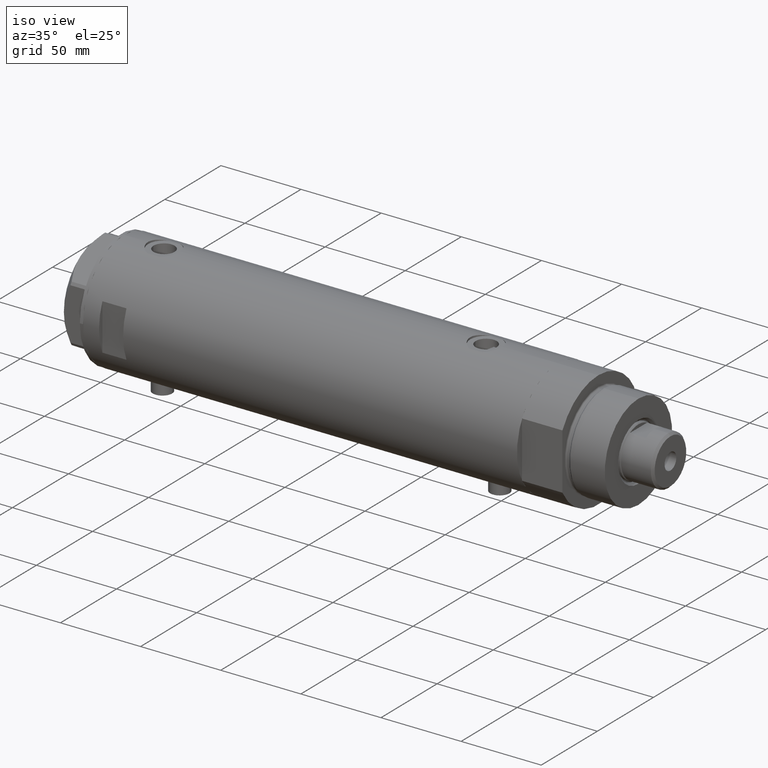
[diagram: clean part render]
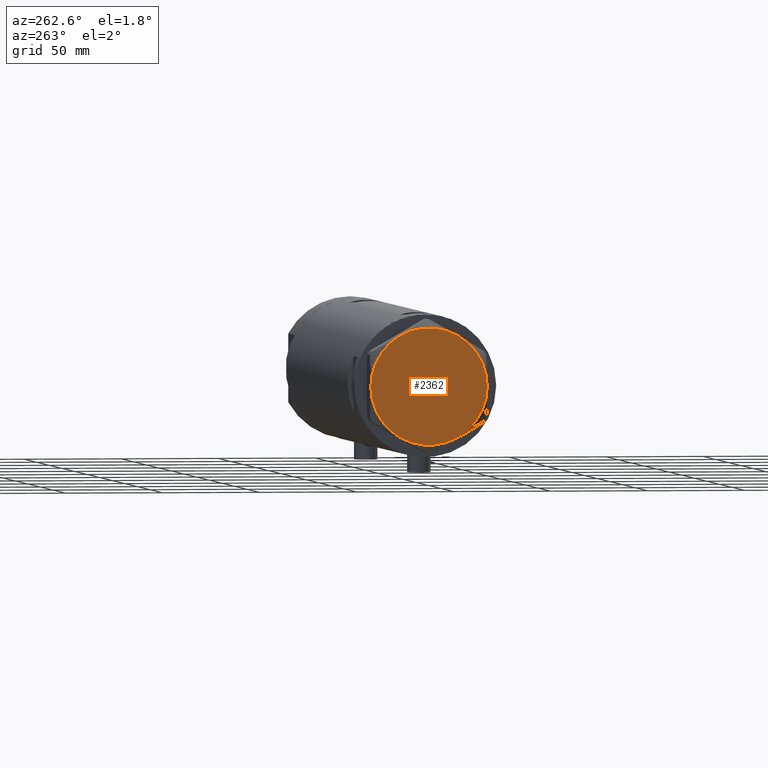
[diagram: tour spotlight — one face highlighted and labeled with its STEP entity id]
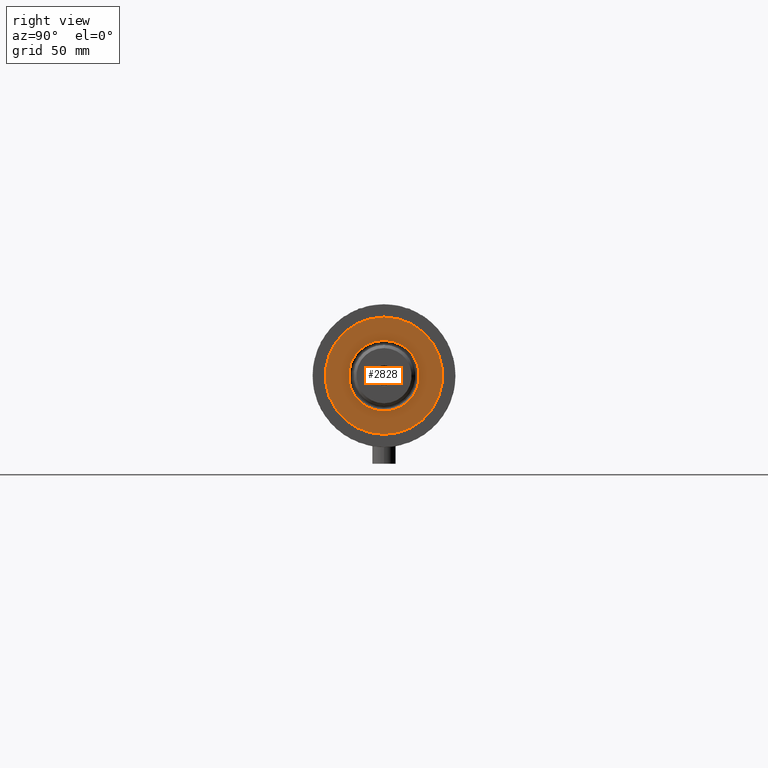
[diagram: tour spotlight — one face highlighted and labeled with its STEP entity id]
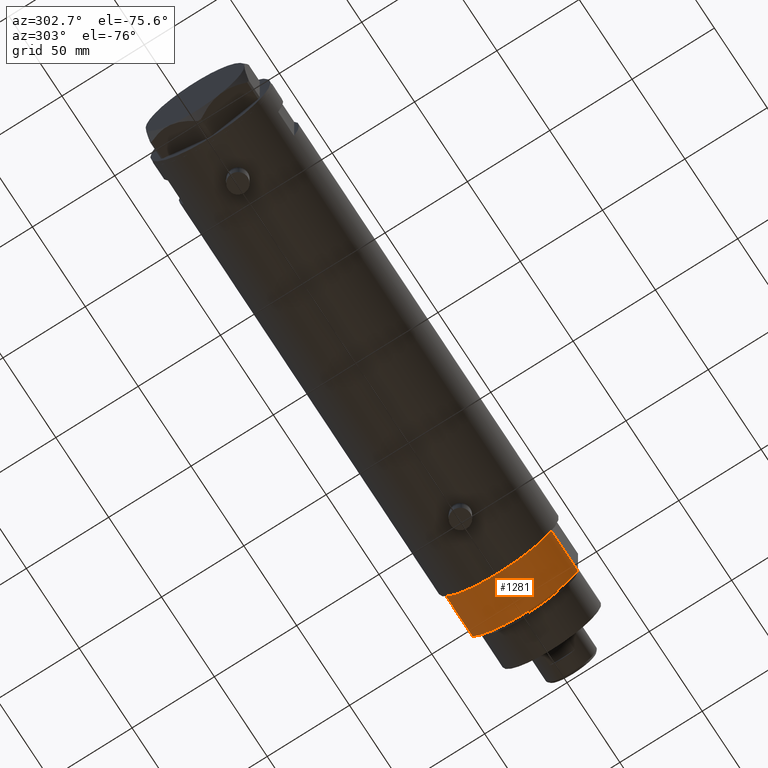
[diagram: tour spotlight — one face highlighted and labeled with its STEP entity id]
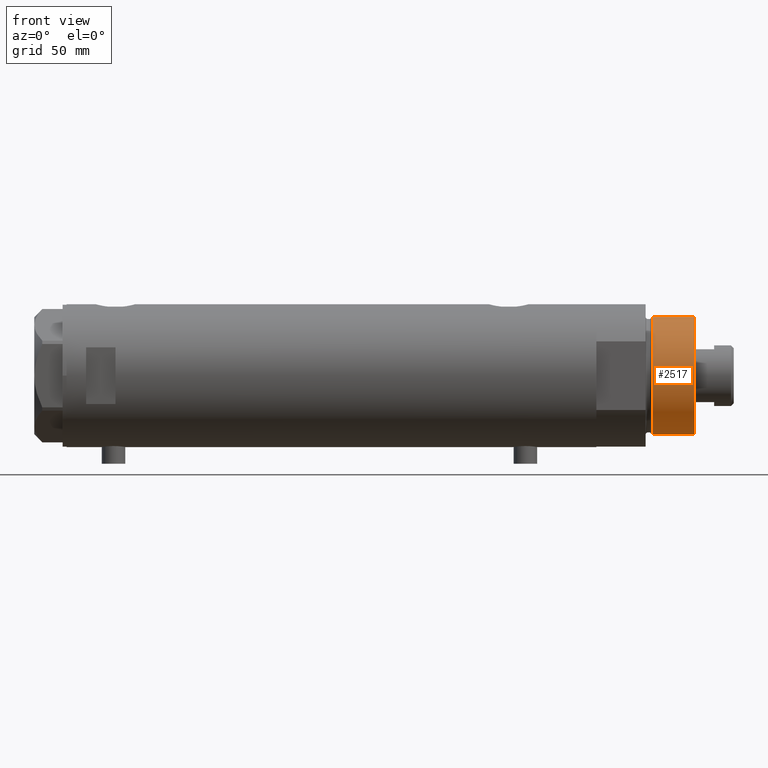
[diagram: tour spotlight — one face highlighted and labeled with its STEP entity id]
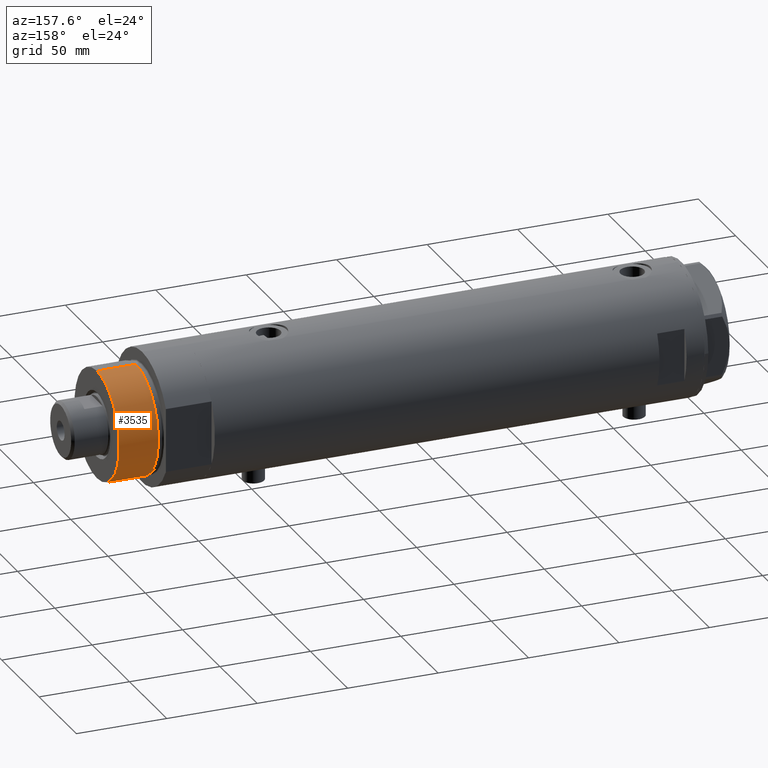
[diagram: tour spotlight — one face highlighted and labeled with its STEP entity id]
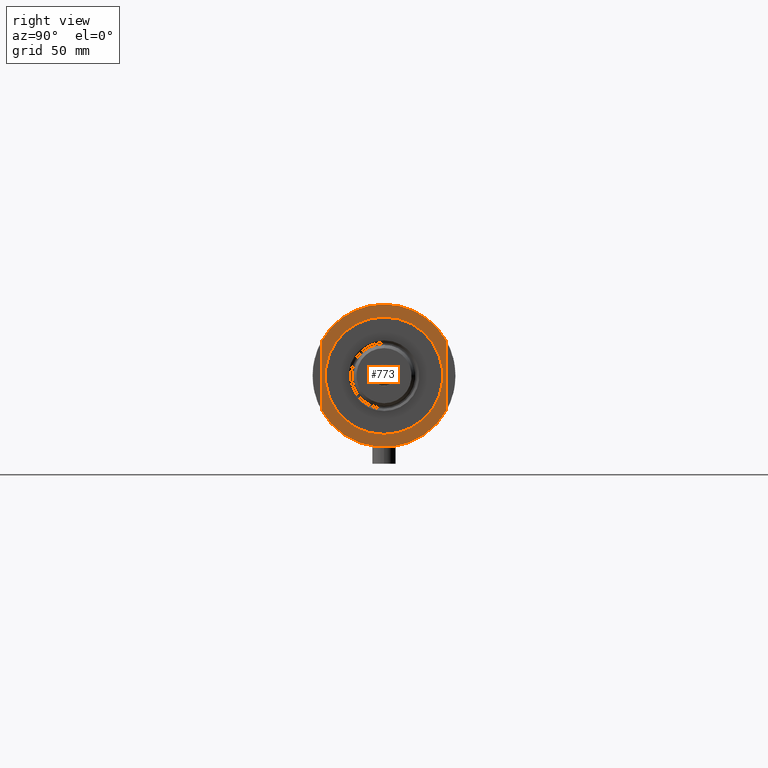
[diagram: tour spotlight — one face highlighted and labeled with its STEP entity id]
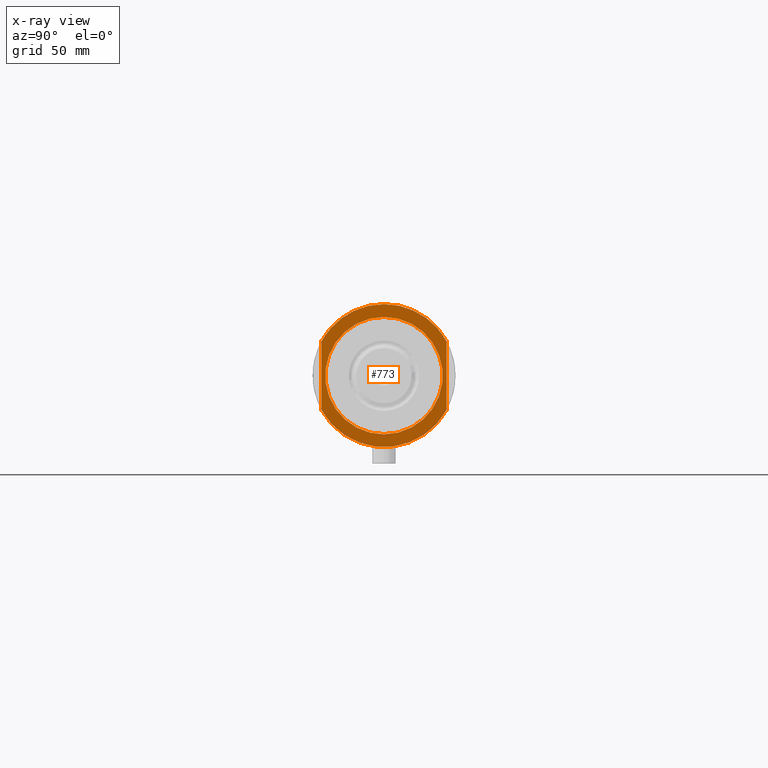
[diagram: x-ray of the same camera — body ghosted, this tour face saturated]
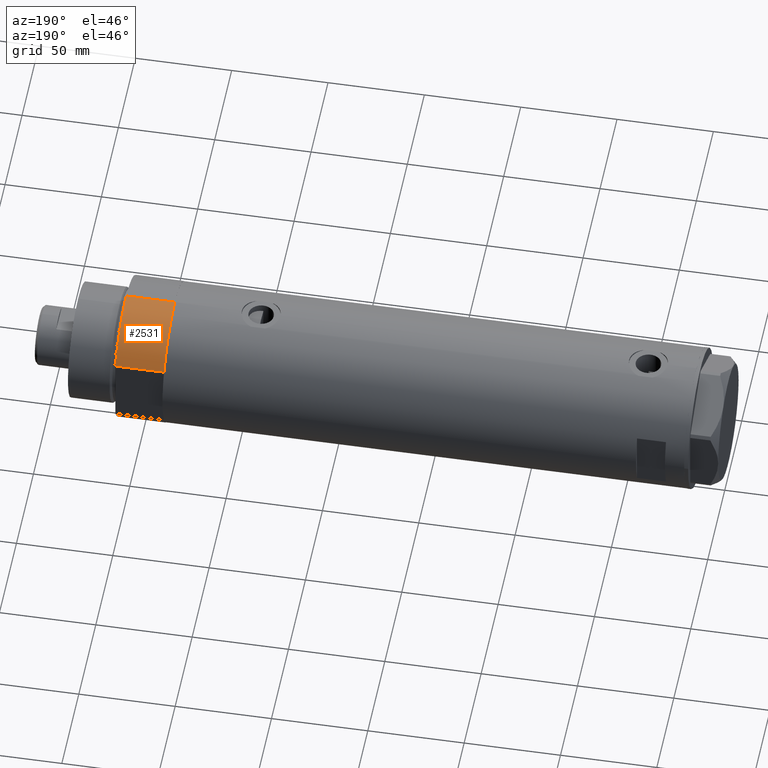
[diagram: tour spotlight — one face highlighted and labeled with its STEP entity id]
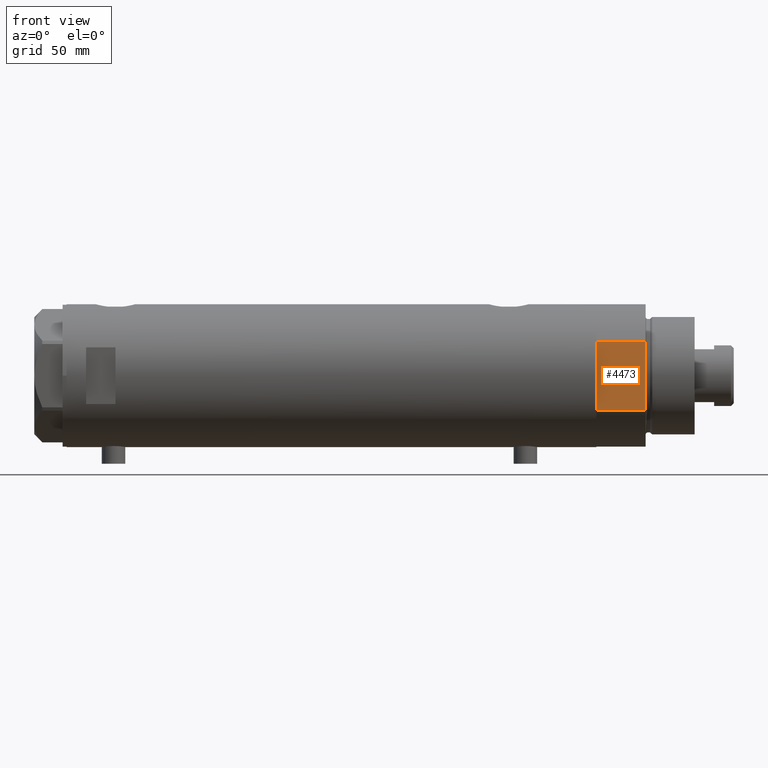
[diagram: tour spotlight — one face highlighted and labeled with its STEP entity id]
A machine part: a face-by-face anatomy tour. The part has 120 B-rep faces; the first image is the clean iso view, then the 8 largest visible faces are spotlighted one at a time (largest first), each with its STEP entity span.

Face 1 — auxiliary view, entity #2362. In plain terms, the highlighted planar face has unit normal (-1, -0, 0).
Definition (entity closure, byte-faithful):
#5 = AXIS2_PLACEMENT_3D ( 'NONE', #3880, #2549, #2185 ) ;
#38 = EDGE_CURVE ( 'NONE', #647, #1718, #296, .T. ) ;
#230 = DIRECTION ( 'NONE',  ( 1.000000000000000000, 0.000000000000000000, 0.000000000000000000 ) ) ;
#296 = CIRCLE ( 'NONE', #670, 30.00000000000000000 ) ;
#338 = DIRECTION ( 'NONE',  ( 0.000000000000000000, 0.000000000000000000, 1.000000000000000000 ) ) ;
#488 = CARTESIAN_POINT ( 'NONE',  ( 0.000000000000000000, 0.000000000000000000, 14.50000000000000000 ) ) ;
#519 = CIRCLE ( 'NONE', #1900, 30.00000000000000000 ) ;
#525 = AXIS2_PLACEMENT_3D ( 'NONE', #488, #3917, #1252 ) ;
#647 = VERTEX_POINT ( 'NONE', #2486 ) ;
#658 = CARTESIAN_POINT ( 'NONE',  ( 14.99999999999999467, 25.98076211353316367, 14.50000000000000000 ) ) ;
#664 = EDGE_CURVE ( 'NONE', #3952, #2847, #2769, .T. ) ;
#670 = AXIS2_PLACEMENT_3D ( 'NONE', #1320, #2736, #230 ) ;
#866 = CARTESIAN_POINT ( 'NONE',  ( 0.000000000000000000, 0.000000000000000000, 14.50000000000000000 ) ) ;
#907 = CARTESIAN_POINT ( 'NONE',  ( 0.000000000000000000, 0.000000000000000000, 14.50000000000000000 ) ) ;
#1057 = CARTESIAN_POINT ( 'NONE',  ( 0.000000000000000000, 0.000000000000000000, 14.50000000000000000 ) ) ;
#1141 = ORIENTED_EDGE ( 'NONE', *, *, #2084, .T. ) ;
#1159 = ORIENTED_EDGE ( 'NONE', *, *, #1778, .T. ) ;
#1252 = DIRECTION ( 'NONE',  ( 1.000000000000000000, 0.000000000000000000, 0.000000000000000000 ) ) ;
#1253 = CIRCLE ( 'NONE', #5, 30.00000000000000000 ) ;
#1312 = ORIENTED_EDGE ( 'NONE', *, *, #3366, .T. ) ;
#1320 = CARTESIAN_POINT ( 'NONE',  ( 0.000000000000000000, 0.000000000000000000, 14.50000000000000000 ) ) ;
#1383 = ORIENTED_EDGE ( 'NONE', *, *, #664, .T. ) ;
#1718 = VERTEX_POINT ( 'NONE', #658 ) ;
#1778 = EDGE_CURVE ( 'NONE', #4218, #647, #1253, .T. ) ;
#1780 = VERTEX_POINT ( 'NONE', #2905 ) ;
#1900 = AXIS2_PLACEMENT_3D ( 'NONE', #4107, #338, #3768 ) ;
#1930 = ORIENTED_EDGE ( 'NONE', *, *, #2386, .T. ) ;
#1952 = DIRECTION ( 'NONE',  ( 1.000000000000000000, 0.000000000000000000, -0.000000000000000000 ) ) ;
#2002 = FACE_OUTER_BOUND ( 'NONE', #2959, .T. ) ;
#2084 = EDGE_CURVE ( 'NONE', #2847, #4218, #4121, .T. ) ;
#2185 = DIRECTION ( 'NONE',  ( 1.000000000000000000, 0.000000000000000000, 0.000000000000000000 ) ) ;
#2221 = DIRECTION ( 'NONE',  ( 1.000000000000000000, 0.000000000000000000, 0.000000000000000000 ) ) ;
#2295 = DIRECTION ( 'NONE',  ( 0.000000000000000000, 0.000000000000000000, 1.000000000000000000 ) ) ;
#2362 = ADVANCED_FACE ( 'NONE', ( #2002 ), #2704, .T. ) ;
#2386 = EDGE_CURVE ( 'NONE', #1780, #3952, #519, .T. ) ;
#2486 = CARTESIAN_POINT ( 'NONE',  ( 30.00000000000000000, 9.013887592422954582E-15, 14.50000000000000000 ) ) ;
#2549 = DIRECTION ( 'NONE',  ( 0.000000000000000000, 0.000000000000000000, 1.000000000000000000 ) ) ;
#2605 = CARTESIAN_POINT ( 'NONE',  ( 14.99999999999998757, -25.98076211353316722, 14.50000000000000000 ) ) ;
#2701 = AXIS2_PLACEMENT_3D ( 'NONE', #1057, #3510, #2799 ) ;
#2704 = PLANE ( 'NONE',  #4350 ) ;
#2736 = DIRECTION ( 'NONE',  ( 0.000000000000000000, 0.000000000000000000, 1.000000000000000000 ) ) ;
#2769 = CIRCLE ( 'NONE', #2701, 30.00000000000000000 ) ;
#2776 = CARTESIAN_POINT ( 'NONE',  ( -14.99999999999999645, -25.98076211353316367, 14.50000000000000000 ) ) ;
#2799 = DIRECTION ( 'NONE',  ( 1.000000000000000000, 0.000000000000000000, 0.000000000000000000 ) ) ;
#2847 = VERTEX_POINT ( 'NONE', #2776 ) ;
#2905 = CARTESIAN_POINT ( 'NONE',  ( -14.99999999999999645, 25.98076211353316367, 14.50000000000000000 ) ) ;
#2959 = EDGE_LOOP ( 'NONE', ( #1159, #3701, #1312, #1930, #1383, #1141 ) ) ;
#2973 = DIRECTION ( 'NONE',  ( 0.000000000000000000, 0.000000000000000000, 1.000000000000000000 ) ) ;
#3205 = CIRCLE ( 'NONE', #525, 30.00000000000000000 ) ;
#3366 = EDGE_CURVE ( 'NONE', #1718, #1780, #3205, .T. ) ;
#3510 = DIRECTION ( 'NONE',  ( 0.000000000000000000, 0.000000000000000000, 1.000000000000000000 ) ) ;
#3574 = CARTESIAN_POINT ( 'NONE',  ( -30.00000000000000000, 0.000000000000000000, 14.50000000000000000 ) ) ;
#3614 = AXIS2_PLACEMENT_3D ( 'NONE', #866, #2973, #2221 ) ;
#3701 = ORIENTED_EDGE ( 'NONE', *, *, #38, .T. ) ;
#3768 = DIRECTION ( 'NONE',  ( 1.000000000000000000, 0.000000000000000000, 0.000000000000000000 ) ) ;
#3880 = CARTESIAN_POINT ( 'NONE',  ( 0.000000000000000000, 0.000000000000000000, 14.50000000000000000 ) ) ;
#3917 = DIRECTION ( 'NONE',  ( 0.000000000000000000, 0.000000000000000000, 1.000000000000000000 ) ) ;
#3952 = VERTEX_POINT ( 'NONE', #3574 ) ;
#4107 = CARTESIAN_POINT ( 'NONE',  ( 0.000000000000000000, 0.000000000000000000, 14.50000000000000000 ) ) ;
#4121 = CIRCLE ( 'NONE', #3614, 30.00000000000000000 ) ;
#4218 = VERTEX_POINT ( 'NONE', #2605 ) ;
#4350 = AXIS2_PLACEMENT_3D ( 'NONE', #907, #2295, #1952 ) ;

Face 2 — right view, entity #2828. In plain terms, the highlighted planar face has unit normal (1, 0, -0).
Definition (entity closure, byte-faithful):
#242 = CARTESIAN_POINT ( 'NONE',  ( 0.000000000000000000, 0.000000000000000000, 50.19999999999999574 ) ) ;
#506 = AXIS2_PLACEMENT_3D ( 'NONE', #242, #4262, #4245 ) ;
#559 = EDGE_CURVE ( 'NONE', #1953, #4200, #1621, .T. ) ;
#632 = DIRECTION ( 'NONE',  ( 0.000000000000000000, 0.000000000000000000, 1.000000000000000000 ) ) ;
#760 = FACE_BOUND ( 'NONE', #931, .T. ) ;
#910 = CARTESIAN_POINT ( 'NONE',  ( 0.000000000000000000, 0.000000000000000000, 50.19999999999999574 ) ) ;
#931 = EDGE_LOOP ( 'NONE', ( #2211, #4022 ) ) ;
#1025 = EDGE_CURVE ( 'NONE', #4200, #1953, #3264, .T. ) ;
#1045 = CIRCLE ( 'NONE', #4131, 18.04999999999996874 ) ;
#1073 = PLANE ( 'NONE',  #2487 ) ;
#1092 = EDGE_LOOP ( 'NONE', ( #2964, #3276 ) ) ;
#1393 = VERTEX_POINT ( 'NONE', #2636 ) ;
#1621 = CIRCLE ( 'NONE', #2979, 30.00000000000000000 ) ;
#1703 = AXIS2_PLACEMENT_3D ( 'NONE', #2347, #2965, #3992 ) ;
#1953 = VERTEX_POINT ( 'NONE', #3921 ) ;
#2014 = DIRECTION ( 'NONE',  ( 1.000000000000000000, 0.000000000000000000, 0.000000000000000000 ) ) ;
#2136 = DIRECTION ( 'NONE',  ( 0.000000000000000000, 0.000000000000000000, 1.000000000000000000 ) ) ;
#2211 = ORIENTED_EDGE ( 'NONE', *, *, #3221, .T. ) ;
#2297 = DIRECTION ( 'NONE',  ( -0.000000000000000000, -0.000000000000000000, -1.000000000000000000 ) ) ;
#2344 = EDGE_CURVE ( 'NONE', #1393, #4226, #4271, .T. ) ;
#2347 = CARTESIAN_POINT ( 'NONE',  ( 0.000000000000000000, 0.000000000000000000, 50.19999999999999574 ) ) ;
#2487 = AXIS2_PLACEMENT_3D ( 'NONE', #3088, #2136, #4112 ) ;
#2636 = CARTESIAN_POINT ( 'NONE',  ( -18.04999999999996874, 2.210487472460968951E-15, 50.19999999999999574 ) ) ;
#2816 = FACE_OUTER_BOUND ( 'NONE', #1092, .T. ) ;
#2828 = ADVANCED_FACE ( 'NONE', ( #760, #2816 ), #1073, .T. ) ;
#2922 = CARTESIAN_POINT ( 'NONE',  ( 30.00000000000000000, 3.673940397442058389E-15, 50.19999999999999574 ) ) ;
#2964 = ORIENTED_EDGE ( 'NONE', *, *, #559, .T. ) ;
#2965 = DIRECTION ( 'NONE',  ( -0.000000000000000000, -0.000000000000000000, -1.000000000000000000 ) ) ;
#2979 = AXIS2_PLACEMENT_3D ( 'NONE', #3684, #632, #2014 ) ;
#3088 = CARTESIAN_POINT ( 'NONE',  ( 0.000000000000000000, 0.000000000000000000, 50.19999999999999574 ) ) ;
#3221 = EDGE_CURVE ( 'NONE', #4226, #1393, #1045, .T. ) ;
#3242 = CARTESIAN_POINT ( 'NONE',  ( 18.04999999999996874, 0.000000000000000000, 50.19999999999999574 ) ) ;
#3264 = CIRCLE ( 'NONE', #506, 30.00000000000000000 ) ;
#3276 = ORIENTED_EDGE ( 'NONE', *, *, #1025, .T. ) ;
#3651 = DIRECTION ( 'NONE',  ( 1.000000000000000000, 0.000000000000000000, 0.000000000000000000 ) ) ;
#3684 = CARTESIAN_POINT ( 'NONE',  ( 0.000000000000000000, 0.000000000000000000, 50.19999999999999574 ) ) ;
#3921 = CARTESIAN_POINT ( 'NONE',  ( -30.00000000000000000, 0.000000000000000000, 50.19999999999999574 ) ) ;
#3992 = DIRECTION ( 'NONE',  ( 1.000000000000000000, 0.000000000000000000, 0.000000000000000000 ) ) ;
#4022 = ORIENTED_EDGE ( 'NONE', *, *, #2344, .T. ) ;
#4112 = DIRECTION ( 'NONE',  ( 1.000000000000000000, 0.000000000000000000, -0.000000000000000000 ) ) ;
#4131 = AXIS2_PLACEMENT_3D ( 'NONE', #910, #2297, #3651 ) ;
#4200 = VERTEX_POINT ( 'NONE', #2922 ) ;
#4226 = VERTEX_POINT ( 'NONE', #3242 ) ;
#4245 = DIRECTION ( 'NONE',  ( 1.000000000000000000, 0.000000000000000000, 0.000000000000000000 ) ) ;
#4262 = DIRECTION ( 'NONE',  ( 0.000000000000000000, 0.000000000000000000, 1.000000000000000000 ) ) ;
#4271 = CIRCLE ( 'NONE', #1703, 18.04999999999996874 ) ;

Face 3 — auxiliary view, entity #1281. In plain terms, the highlighted cylindrical surface (partial cylindrical patch) has radius 36.5 mm, axis along (-1, -0, 0).
Definition (entity closure, byte-faithful):
#107 = ORIENTED_EDGE ( 'NONE', *, *, #1384, .F. ) ;
#159 = DIRECTION ( 'NONE',  ( 1.000000000000000000, 0.000000000000000000, 0.000000000000000000 ) ) ;
#431 = CARTESIAN_POINT ( 'NONE',  ( 0.000000000000000000, 0.000000000000000000, 25.19999999999999929 ) ) ;
#524 = DIRECTION ( 'NONE',  ( -0.000000000000000000, -0.000000000000000000, 1.000000000000000000 ) ) ;
#666 = AXIS2_PLACEMENT_3D ( 'NONE', #431, #3839, #1480 ) ;
#791 = VERTEX_POINT ( 'NONE', #4172 ) ;
#810 = CIRCLE ( 'NONE', #2114, 36.50000000000000000 ) ;
#934 = DIRECTION ( 'NONE',  ( 0.000000000000000000, 0.000000000000000000, 1.000000000000000000 ) ) ;
#959 = CARTESIAN_POINT ( 'NONE',  ( 17.55704986607943496, 32.00000000000000000, 25.19999999999999929 ) ) ;
#1120 = VERTEX_POINT ( 'NONE', #2261 ) ;
#1213 = CARTESIAN_POINT ( 'NONE',  ( 17.55704986607943141, 32.00000000000000000, 0.000000000000000000 ) ) ;
#1281 = ADVANCED_FACE ( 'NONE', ( #4388 ), #3526, .T. ) ;
#1331 = VECTOR ( 'NONE', #524, 1000.000000000000000 ) ;
#1384 = EDGE_CURVE ( 'NONE', #791, #1120, #3674, .T. ) ;
#1451 = VERTEX_POINT ( 'NONE', #3746 ) ;
#1480 = DIRECTION ( 'NONE',  ( -1.000000000000000000, 0.000000000000000000, 0.000000000000000000 ) ) ;
#1526 = CARTESIAN_POINT ( 'NONE',  ( 0.000000000000000000, 0.000000000000000000, 0.000000000000000000 ) ) ;
#1984 = DIRECTION ( 'NONE',  ( 1.000000000000000000, 0.000000000000000000, 0.000000000000000000 ) ) ;
#2114 = AXIS2_PLACEMENT_3D ( 'NONE', #1526, #2592, #159 ) ;
#2146 = ORIENTED_EDGE ( 'NONE', *, *, #2524, .T. ) ;
#2261 = CARTESIAN_POINT ( 'NONE',  ( 17.55704986607943496, -32.00000000000000000, 25.19999999999999929 ) ) ;
#2342 = VERTEX_POINT ( 'NONE', #959 ) ;
#2409 = ORIENTED_EDGE ( 'NONE', *, *, #4145, .F. ) ;
#2524 = EDGE_CURVE ( 'NONE', #791, #1451, #810, .T. ) ;
#2592 = DIRECTION ( 'NONE',  ( 0.000000000000000000, 0.000000000000000000, 1.000000000000000000 ) ) ;
#2862 = DIRECTION ( 'NONE',  ( -0.000000000000000000, -0.000000000000000000, 1.000000000000000000 ) ) ;
#2961 = EDGE_CURVE ( 'NONE', #1451, #2342, #3257, .T. ) ;
#3126 = VECTOR ( 'NONE', #2862, 1000.000000000000000 ) ;
#3257 = LINE ( 'NONE', #1213, #3126 ) ;
#3526 = CYLINDRICAL_SURFACE ( 'NONE', #666, 36.50000000000000000 ) ;
#3674 = LINE ( 'NONE', #4352, #1331 ) ;
#3746 = CARTESIAN_POINT ( 'NONE',  ( 17.55704986607943496, 32.00000000000000000, 0.000000000000000000 ) ) ;
#3807 = EDGE_LOOP ( 'NONE', ( #2409, #107, #2146, #4264 ) ) ;
#3839 = DIRECTION ( 'NONE',  ( -0.000000000000000000, -0.000000000000000000, -1.000000000000000000 ) ) ;
#4016 = CARTESIAN_POINT ( 'NONE',  ( 0.000000000000000000, 0.000000000000000000, 25.19999999999999929 ) ) ;
#4136 = AXIS2_PLACEMENT_3D ( 'NONE', #4016, #934, #1984 ) ;
#4145 = EDGE_CURVE ( 'NONE', #1120, #2342, #4216, .T. ) ;
#4172 = CARTESIAN_POINT ( 'NONE',  ( 17.55704986607943141, -32.00000000000000000, 0.000000000000000000 ) ) ;
#4216 = CIRCLE ( 'NONE', #4136, 36.50000000000000000 ) ;
#4264 = ORIENTED_EDGE ( 'NONE', *, *, #2961, .T. ) ;
#4352 = CARTESIAN_POINT ( 'NONE',  ( 17.55704986607943141, -32.00000000000000000, 0.000000000000000000 ) ) ;
#4388 = FACE_OUTER_BOUND ( 'NONE', #3807, .T. ) ;

Face 4 — front view, entity #2517. In plain terms, the highlighted cylindrical surface (partial cylindrical patch) has radius 30 mm, axis along (-1, -0, 0).
Definition (entity closure, byte-faithful):
#122 = LINE ( 'NONE', #510, #871 ) ;
#153 = AXIS2_PLACEMENT_3D ( 'NONE', #3356, #3000, #4402 ) ;
#310 = CIRCLE ( 'NONE', #153, 30.00000000000000000 ) ;
#425 = ORIENTED_EDGE ( 'NONE', *, *, #559, .F. ) ;
#510 = CARTESIAN_POINT ( 'NONE',  ( 30.00000000000000000, 3.673940397442058389E-15, 50.19999999999999574 ) ) ;
#511 = CARTESIAN_POINT ( 'NONE',  ( -30.00000000000000000, 0.000000000000000000, 28.57384048104054486 ) ) ;
#528 = DIRECTION ( 'NONE',  ( -0.000000000000000000, -0.000000000000000000, -1.000000000000000000 ) ) ;
#559 = EDGE_CURVE ( 'NONE', #1953, #4200, #1621, .T. ) ;
#632 = DIRECTION ( 'NONE',  ( 0.000000000000000000, 0.000000000000000000, 1.000000000000000000 ) ) ;
#718 = LINE ( 'NONE', #3317, #2606 ) ;
#861 = FACE_OUTER_BOUND ( 'NONE', #3209, .T. ) ;
#871 = VECTOR ( 'NONE', #2598, 1000.000000000000000 ) ;
#1017 = ORIENTED_EDGE ( 'NONE', *, *, #1265, .T. ) ;
#1051 = EDGE_CURVE ( 'NONE', #4200, #1053, #122, .T. ) ;
#1053 = VERTEX_POINT ( 'NONE', #1515 ) ;
#1151 = CYLINDRICAL_SURFACE ( 'NONE', #3335, 30.00000000000000000 ) ;
#1241 = ORIENTED_EDGE ( 'NONE', *, *, #2744, .T. ) ;
#1265 = EDGE_CURVE ( 'NONE', #1953, #2412, #718, .T. ) ;
#1515 = CARTESIAN_POINT ( 'NONE',  ( 30.00000000000000000, 3.673940397442058389E-15, 28.57384048104054486 ) ) ;
#1621 = CIRCLE ( 'NONE', #2979, 30.00000000000000000 ) ;
#1953 = VERTEX_POINT ( 'NONE', #3921 ) ;
#2014 = DIRECTION ( 'NONE',  ( 1.000000000000000000, 0.000000000000000000, 0.000000000000000000 ) ) ;
#2412 = VERTEX_POINT ( 'NONE', #511 ) ;
#2517 = ADVANCED_FACE ( 'NONE', ( #861 ), #1151, .T. ) ;
#2598 = DIRECTION ( 'NONE',  ( -0.000000000000000000, -0.000000000000000000, -1.000000000000000000 ) ) ;
#2606 = VECTOR ( 'NONE', #2668, 1000.000000000000000 ) ;
#2668 = DIRECTION ( 'NONE',  ( -0.000000000000000000, -0.000000000000000000, -1.000000000000000000 ) ) ;
#2744 = EDGE_CURVE ( 'NONE', #2412, #1053, #310, .T. ) ;
#2922 = CARTESIAN_POINT ( 'NONE',  ( 30.00000000000000000, 3.673940397442058389E-15, 50.19999999999999574 ) ) ;
#2979 = AXIS2_PLACEMENT_3D ( 'NONE', #3684, #632, #2014 ) ;
#3000 = DIRECTION ( 'NONE',  ( -0.000000000000000000, -0.000000000000000000, 1.000000000000000000 ) ) ;
#3209 = EDGE_LOOP ( 'NONE', ( #3298, #425, #1017, #1241 ) ) ;
#3289 = CARTESIAN_POINT ( 'NONE',  ( 0.000000000000000000, 0.000000000000000000, 50.19999999999999574 ) ) ;
#3298 = ORIENTED_EDGE ( 'NONE', *, *, #1051, .F. ) ;
#3317 = CARTESIAN_POINT ( 'NONE',  ( -30.00000000000000000, 0.000000000000000000, 50.19999999999999574 ) ) ;
#3335 = AXIS2_PLACEMENT_3D ( 'NONE', #3289, #528, #4237 ) ;
#3356 = CARTESIAN_POINT ( 'NONE',  ( 0.000000000000000000, 0.000000000000000000, 28.57384048104054486 ) ) ;
#3684 = CARTESIAN_POINT ( 'NONE',  ( 0.000000000000000000, 0.000000000000000000, 50.19999999999999574 ) ) ;
#3921 = CARTESIAN_POINT ( 'NONE',  ( -30.00000000000000000, 0.000000000000000000, 50.19999999999999574 ) ) ;
#4200 = VERTEX_POINT ( 'NONE', #2922 ) ;
#4237 = DIRECTION ( 'NONE',  ( -1.000000000000000000, 0.000000000000000000, 0.000000000000000000 ) ) ;
#4402 = DIRECTION ( 'NONE',  ( 1.000000000000000000, 0.000000000000000000, 0.000000000000000000 ) ) ;

Face 5 — auxiliary view, entity #3535. In plain terms, the highlighted cylindrical surface (partial cylindrical patch) has radius 30 mm, axis along (-1, -0, 0).
Definition (entity closure, byte-faithful):
#122 = LINE ( 'NONE', #510, #871 ) ;
#242 = CARTESIAN_POINT ( 'NONE',  ( 0.000000000000000000, 0.000000000000000000, 50.19999999999999574 ) ) ;
#283 = ORIENTED_EDGE ( 'NONE', *, *, #1051, .T. ) ;
#312 = EDGE_CURVE ( 'NONE', #1053, #2412, #4351, .T. ) ;
#506 = AXIS2_PLACEMENT_3D ( 'NONE', #242, #4262, #4245 ) ;
#510 = CARTESIAN_POINT ( 'NONE',  ( 30.00000000000000000, 3.673940397442058389E-15, 50.19999999999999574 ) ) ;
#511 = CARTESIAN_POINT ( 'NONE',  ( -30.00000000000000000, 0.000000000000000000, 28.57384048104054486 ) ) ;
#718 = LINE ( 'NONE', #3317, #2606 ) ;
#871 = VECTOR ( 'NONE', #2598, 1000.000000000000000 ) ;
#1023 = CYLINDRICAL_SURFACE ( 'NONE', #3130, 30.00000000000000000 ) ;
#1025 = EDGE_CURVE ( 'NONE', #4200, #1953, #3264, .T. ) ;
#1051 = EDGE_CURVE ( 'NONE', #4200, #1053, #122, .T. ) ;
#1053 = VERTEX_POINT ( 'NONE', #1515 ) ;
#1265 = EDGE_CURVE ( 'NONE', #1953, #2412, #718, .T. ) ;
#1371 = ORIENTED_EDGE ( 'NONE', *, *, #1025, .F. ) ;
#1484 = AXIS2_PLACEMENT_3D ( 'NONE', #2612, #1859, #3914 ) ;
#1515 = CARTESIAN_POINT ( 'NONE',  ( 30.00000000000000000, 3.673940397442058389E-15, 28.57384048104054486 ) ) ;
#1857 = ORIENTED_EDGE ( 'NONE', *, *, #312, .T. ) ;
#1859 = DIRECTION ( 'NONE',  ( -0.000000000000000000, -0.000000000000000000, 1.000000000000000000 ) ) ;
#1932 = ORIENTED_EDGE ( 'NONE', *, *, #1265, .F. ) ;
#1953 = VERTEX_POINT ( 'NONE', #3921 ) ;
#2412 = VERTEX_POINT ( 'NONE', #511 ) ;
#2598 = DIRECTION ( 'NONE',  ( -0.000000000000000000, -0.000000000000000000, -1.000000000000000000 ) ) ;
#2606 = VECTOR ( 'NONE', #2668, 1000.000000000000000 ) ;
#2612 = CARTESIAN_POINT ( 'NONE',  ( 0.000000000000000000, 0.000000000000000000, 28.57384048104054486 ) ) ;
#2668 = DIRECTION ( 'NONE',  ( -0.000000000000000000, -0.000000000000000000, -1.000000000000000000 ) ) ;
#2922 = CARTESIAN_POINT ( 'NONE',  ( 30.00000000000000000, 3.673940397442058389E-15, 50.19999999999999574 ) ) ;
#3096 = DIRECTION ( 'NONE',  ( -0.000000000000000000, -0.000000000000000000, -1.000000000000000000 ) ) ;
#3130 = AXIS2_PLACEMENT_3D ( 'NONE', #3662, #3096, #4123 ) ;
#3264 = CIRCLE ( 'NONE', #506, 30.00000000000000000 ) ;
#3317 = CARTESIAN_POINT ( 'NONE',  ( -30.00000000000000000, 0.000000000000000000, 50.19999999999999574 ) ) ;
#3505 = EDGE_LOOP ( 'NONE', ( #1371, #283, #1857, #1932 ) ) ;
#3535 = ADVANCED_FACE ( 'NONE', ( #4101 ), #1023, .T. ) ;
#3662 = CARTESIAN_POINT ( 'NONE',  ( 0.000000000000000000, 0.000000000000000000, 50.19999999999999574 ) ) ;
#3914 = DIRECTION ( 'NONE',  ( 1.000000000000000000, 0.000000000000000000, 0.000000000000000000 ) ) ;
#3921 = CARTESIAN_POINT ( 'NONE',  ( -30.00000000000000000, 0.000000000000000000, 50.19999999999999574 ) ) ;
#4101 = FACE_OUTER_BOUND ( 'NONE', #3505, .T. ) ;
#4123 = DIRECTION ( 'NONE',  ( -1.000000000000000000, 0.000000000000000000, 0.000000000000000000 ) ) ;
#4200 = VERTEX_POINT ( 'NONE', #2922 ) ;
#4245 = DIRECTION ( 'NONE',  ( 1.000000000000000000, 0.000000000000000000, 0.000000000000000000 ) ) ;
#4262 = DIRECTION ( 'NONE',  ( 0.000000000000000000, 0.000000000000000000, 1.000000000000000000 ) ) ;
#4351 = CIRCLE ( 'NONE', #1484, 30.00000000000000000 ) ;

Face 6 — right view, entity #773. An x-ray twin of the same camera follows (body ghosted, this face saturated) — the face is partly hidden behind the body. In plain terms, the highlighted planar face has unit normal (1, 0, -0).
Definition (entity closure, byte-faithful):
#19 = CIRCLE ( 'NONE', #2989, 30.00000000000000355 ) ;
#51 = EDGE_LOOP ( 'NONE', ( #1601, #3053, #1976, #3495, #4469 ) ) ;
#146 = AXIS2_PLACEMENT_3D ( 'NONE', #3232, #558, #1248 ) ;
#170 = DIRECTION ( 'NONE',  ( -1.000000000000000000, -0.000000000000000000, -0.000000000000000000 ) ) ;
#318 = EDGE_CURVE ( 'NONE', #2130, #2449, #4428, .T. ) ;
#547 = EDGE_CURVE ( 'NONE', #4339, #2128, #2614, .T. ) ;
#558 = DIRECTION ( 'NONE',  ( -0.000000000000000000, -0.000000000000000000, -1.000000000000000000 ) ) ;
#623 = CARTESIAN_POINT ( 'NONE',  ( -36.50000000000000000, 0.000000000000000000, 25.19999999999999929 ) ) ;
#676 = AXIS2_PLACEMENT_3D ( 'NONE', #2662, #942, #2330 ) ;
#759 = ORIENTED_EDGE ( 'NONE', *, *, #3882, .T. ) ;
#773 = ADVANCED_FACE ( 'NONE', ( #3963, #2962 ), #1830, .T. ) ;
#894 = DIRECTION ( 'NONE',  ( 1.000000000000000000, 0.000000000000000000, 0.000000000000000000 ) ) ;
#934 = DIRECTION ( 'NONE',  ( 0.000000000000000000, 0.000000000000000000, 1.000000000000000000 ) ) ;
#942 = DIRECTION ( 'NONE',  ( 0.000000000000000000, 0.000000000000000000, 1.000000000000000000 ) ) ;
#959 = CARTESIAN_POINT ( 'NONE',  ( 17.55704986607943496, 32.00000000000000000, 25.19999999999999929 ) ) ;
#1120 = VERTEX_POINT ( 'NONE', #2261 ) ;
#1248 = DIRECTION ( 'NONE',  ( 1.000000000000000000, 0.000000000000000000, 0.000000000000000000 ) ) ;
#1479 = CIRCLE ( 'NONE', #3610, 36.50000000000000000 ) ;
#1499 = DIRECTION ( 'NONE',  ( 0.000000000000000000, 0.000000000000000000, 1.000000000000000000 ) ) ;
#1541 = AXIS2_PLACEMENT_3D ( 'NONE', #4341, #1499, #2864 ) ;
#1543 = DIRECTION ( 'NONE',  ( 1.000000000000000000, 0.000000000000000000, 0.000000000000000000 ) ) ;
#1545 = DIRECTION ( 'NONE',  ( -0.000000000000000000, -0.000000000000000000, -1.000000000000000000 ) ) ;
#1601 = ORIENTED_EDGE ( 'NONE', *, *, #1828, .F. ) ;
#1647 = CARTESIAN_POINT ( 'NONE',  ( -17.55704986607943496, 32.00000000000000000, 25.19999999999999929 ) ) ;
#1666 = ORIENTED_EDGE ( 'NONE', *, *, #318, .T. ) ;
#1751 = EDGE_CURVE ( 'NONE', #3581, #4339, #1479, .T. ) ;
#1814 = EDGE_CURVE ( 'NONE', #3581, #2342, #3893, .T. ) ;
#1828 = EDGE_CURVE ( 'NONE', #1120, #2128, #3275, .T. ) ;
#1830 = PLANE ( 'NONE',  #1541 ) ;
#1832 = DIRECTION ( 'NONE',  ( 0.000000000000000000, 0.000000000000000000, 1.000000000000000000 ) ) ;
#1879 = CARTESIAN_POINT ( 'NONE',  ( -17.55704986607943141, -32.00000000000000000, 25.19999999999999929 ) ) ;
#1976 = ORIENTED_EDGE ( 'NONE', *, *, #1814, .F. ) ;
#1984 = DIRECTION ( 'NONE',  ( 1.000000000000000000, 0.000000000000000000, 0.000000000000000000 ) ) ;
#2128 = VERTEX_POINT ( 'NONE', #2446 ) ;
#2130 = VERTEX_POINT ( 'NONE', #2425 ) ;
#2219 = DIRECTION ( 'NONE',  ( 1.000000000000000000, 0.000000000000000000, 0.000000000000000000 ) ) ;
#2261 = CARTESIAN_POINT ( 'NONE',  ( 17.55704986607943496, -32.00000000000000000, 25.19999999999999929 ) ) ;
#2330 = DIRECTION ( 'NONE',  ( 1.000000000000000000, 0.000000000000000000, 0.000000000000000000 ) ) ;
#2342 = VERTEX_POINT ( 'NONE', #959 ) ;
#2408 = VECTOR ( 'NONE', #170, 1000.000000000000000 ) ;
#2425 = CARTESIAN_POINT ( 'NONE',  ( -30.00000000000000355, 3.673940397442059178E-15, 25.19999999999999929 ) ) ;
#2446 = CARTESIAN_POINT ( 'NONE',  ( -17.55704986607943496, -32.00000000000000000, 25.19999999999999929 ) ) ;
#2449 = VERTEX_POINT ( 'NONE', #3647 ) ;
#2614 = CIRCLE ( 'NONE', #676, 36.50000000000000000 ) ;
#2662 = CARTESIAN_POINT ( 'NONE',  ( 0.000000000000000000, 0.000000000000000000, 25.19999999999999929 ) ) ;
#2667 = EDGE_LOOP ( 'NONE', ( #759, #1666 ) ) ;
#2864 = DIRECTION ( 'NONE',  ( 1.000000000000000000, 0.000000000000000000, -0.000000000000000000 ) ) ;
#2962 = FACE_OUTER_BOUND ( 'NONE', #51, .T. ) ;
#2989 = AXIS2_PLACEMENT_3D ( 'NONE', #3980, #1545, #894 ) ;
#3053 = ORIENTED_EDGE ( 'NONE', *, *, #4145, .T. ) ;
#3232 = CARTESIAN_POINT ( 'NONE',  ( 0.000000000000000000, 0.000000000000000000, 25.19999999999999929 ) ) ;
#3275 = LINE ( 'NONE', #1879, #2408 ) ;
#3495 = ORIENTED_EDGE ( 'NONE', *, *, #1751, .T. ) ;
#3581 = VERTEX_POINT ( 'NONE', #1647 ) ;
#3610 = AXIS2_PLACEMENT_3D ( 'NONE', #4215, #1832, #1543 ) ;
#3624 = CARTESIAN_POINT ( 'NONE',  ( -17.55704986607943141, 32.00000000000000000, 25.19999999999999929 ) ) ;
#3647 = CARTESIAN_POINT ( 'NONE',  ( 30.00000000000000355, 0.000000000000000000, 25.19999999999999929 ) ) ;
#3823 = VECTOR ( 'NONE', #2219, 1000.000000000000000 ) ;
#3882 = EDGE_CURVE ( 'NONE', #2449, #2130, #19, .T. ) ;
#3893 = LINE ( 'NONE', #3624, #3823 ) ;
#3963 = FACE_BOUND ( 'NONE', #2667, .T. ) ;
#3980 = CARTESIAN_POINT ( 'NONE',  ( 0.000000000000000000, 0.000000000000000000, 25.19999999999999929 ) ) ;
#4016 = CARTESIAN_POINT ( 'NONE',  ( 0.000000000000000000, 0.000000000000000000, 25.19999999999999929 ) ) ;
#4136 = AXIS2_PLACEMENT_3D ( 'NONE', #4016, #934, #1984 ) ;
#4145 = EDGE_CURVE ( 'NONE', #1120, #2342, #4216, .T. ) ;
#4215 = CARTESIAN_POINT ( 'NONE',  ( 0.000000000000000000, 0.000000000000000000, 25.19999999999999929 ) ) ;
#4216 = CIRCLE ( 'NONE', #4136, 36.50000000000000000 ) ;
#4339 = VERTEX_POINT ( 'NONE', #623 ) ;
#4341 = CARTESIAN_POINT ( 'NONE',  ( 0.000000000000000000, 0.000000000000000000, 25.19999999999999929 ) ) ;
#4428 = CIRCLE ( 'NONE', #146, 30.00000000000000355 ) ;
#4469 = ORIENTED_EDGE ( 'NONE', *, *, #547, .T. ) ;

Face 7 — auxiliary view, entity #2531. In plain terms, the highlighted cylindrical surface (partial cylindrical patch) has radius 36.5 mm, axis along (-1, -0, 0).
Definition (entity closure, byte-faithful):
#623 = CARTESIAN_POINT ( 'NONE',  ( -36.50000000000000000, 0.000000000000000000, 25.19999999999999929 ) ) ;
#634 = CARTESIAN_POINT ( 'NONE',  ( 0.000000000000000000, 0.000000000000000000, 0.000000000000000000 ) ) ;
#793 = ORIENTED_EDGE ( 'NONE', *, *, #3955, .F. ) ;
#801 = FACE_OUTER_BOUND ( 'NONE', #2057, .T. ) ;
#898 = DIRECTION ( 'NONE',  ( 0.000000000000000000, 0.000000000000000000, 1.000000000000000000 ) ) ;
#1029 = VECTOR ( 'NONE', #4333, 1000.000000000000000 ) ;
#1172 = CARTESIAN_POINT ( 'NONE',  ( -17.55704986607943141, 32.00000000000000000, 0.000000000000000000 ) ) ;
#1189 = VECTOR ( 'NONE', #2909, 1000.000000000000000 ) ;
#1337 = AXIS2_PLACEMENT_3D ( 'NONE', #2251, #4302, #1917 ) ;
#1479 = CIRCLE ( 'NONE', #3610, 36.50000000000000000 ) ;
#1543 = DIRECTION ( 'NONE',  ( 1.000000000000000000, 0.000000000000000000, 0.000000000000000000 ) ) ;
#1564 = EDGE_CURVE ( 'NONE', #2653, #3581, #2929, .T. ) ;
#1647 = CARTESIAN_POINT ( 'NONE',  ( -17.55704986607943496, 32.00000000000000000, 25.19999999999999929 ) ) ;
#1650 = EDGE_CURVE ( 'NONE', #2653, #2698, #2336, .T. ) ;
#1751 = EDGE_CURVE ( 'NONE', #3581, #4339, #1479, .T. ) ;
#1832 = DIRECTION ( 'NONE',  ( 0.000000000000000000, 0.000000000000000000, 1.000000000000000000 ) ) ;
#1872 = LINE ( 'NONE', #3246, #1189 ) ;
#1898 = CARTESIAN_POINT ( 'NONE',  ( -17.55704986607943141, 32.00000000000000000, 0.000000000000000000 ) ) ;
#1917 = DIRECTION ( 'NONE',  ( -1.000000000000000000, 0.000000000000000000, 0.000000000000000000 ) ) ;
#2009 = ORIENTED_EDGE ( 'NONE', *, *, #1650, .T. ) ;
#2057 = EDGE_LOOP ( 'NONE', ( #793, #4331, #2566, #2009 ) ) ;
#2251 = CARTESIAN_POINT ( 'NONE',  ( 0.000000000000000000, 0.000000000000000000, 25.19999999999999929 ) ) ;
#2307 = DIRECTION ( 'NONE',  ( 1.000000000000000000, 0.000000000000000000, 0.000000000000000000 ) ) ;
#2336 = CIRCLE ( 'NONE', #4426, 36.50000000000000000 ) ;
#2531 = ADVANCED_FACE ( 'NONE', ( #801 ), #3550, .T. ) ;
#2566 = ORIENTED_EDGE ( 'NONE', *, *, #1564, .F. ) ;
#2653 = VERTEX_POINT ( 'NONE', #1172 ) ;
#2698 = VERTEX_POINT ( 'NONE', #3329 ) ;
#2909 = DIRECTION ( 'NONE',  ( -0.000000000000000000, -0.000000000000000000, -1.000000000000000000 ) ) ;
#2929 = LINE ( 'NONE', #1898, #1029 ) ;
#3246 = CARTESIAN_POINT ( 'NONE',  ( -36.50000000000000000, 0.000000000000000000, 25.19999999999999929 ) ) ;
#3329 = CARTESIAN_POINT ( 'NONE',  ( -36.50000000000000000, 0.000000000000000000, 0.000000000000000000 ) ) ;
#3550 = CYLINDRICAL_SURFACE ( 'NONE', #1337, 36.50000000000000000 ) ;
#3581 = VERTEX_POINT ( 'NONE', #1647 ) ;
#3610 = AXIS2_PLACEMENT_3D ( 'NONE', #4215, #1832, #1543 ) ;
#3955 = EDGE_CURVE ( 'NONE', #4339, #2698, #1872, .T. ) ;
#4215 = CARTESIAN_POINT ( 'NONE',  ( 0.000000000000000000, 0.000000000000000000, 25.19999999999999929 ) ) ;
#4302 = DIRECTION ( 'NONE',  ( -0.000000000000000000, -0.000000000000000000, -1.000000000000000000 ) ) ;
#4331 = ORIENTED_EDGE ( 'NONE', *, *, #1751, .F. ) ;
#4333 = DIRECTION ( 'NONE',  ( -0.000000000000000000, -0.000000000000000000, 1.000000000000000000 ) ) ;
#4339 = VERTEX_POINT ( 'NONE', #623 ) ;
#4426 = AXIS2_PLACEMENT_3D ( 'NONE', #634, #898, #2307 ) ;

Face 8 — front view, entity #4473. In plain terms, the highlighted planar face has unit normal (-0, 1, 0).
Definition (entity closure, byte-faithful):
#77 = VECTOR ( 'NONE', #4381, 1000.000000000000000 ) ;
#170 = DIRECTION ( 'NONE',  ( -1.000000000000000000, -0.000000000000000000, -0.000000000000000000 ) ) ;
#200 = DIRECTION ( 'NONE',  ( -0.000000000000000000, 1.000000000000000000, 0.000000000000000000 ) ) ;
#216 = VECTOR ( 'NONE', #3996, 1000.000000000000000 ) ;
#249 = ORIENTED_EDGE ( 'NONE', *, *, #1828, .T. ) ;
#372 = ORIENTED_EDGE ( 'NONE', *, *, #1397, .F. ) ;
#426 = EDGE_CURVE ( 'NONE', #530, #2128, #4077, .T. ) ;
#475 = ORIENTED_EDGE ( 'NONE', *, *, #1384, .T. ) ;
#524 = DIRECTION ( 'NONE',  ( -0.000000000000000000, -0.000000000000000000, 1.000000000000000000 ) ) ;
#530 = VERTEX_POINT ( 'NONE', #3733 ) ;
#593 = PLANE ( 'NONE',  #2854 ) ;
#791 = VERTEX_POINT ( 'NONE', #4172 ) ;
#830 = CARTESIAN_POINT ( 'NONE',  ( -17.55704986607943141, -32.00000000000000000, 0.000000000000000000 ) ) ;
#885 = CARTESIAN_POINT ( 'NONE',  ( 0.000000000000000000, -32.00000000000000000, 0.000000000000000000 ) ) ;
#1095 = ORIENTED_EDGE ( 'NONE', *, *, #3870, .F. ) ;
#1120 = VERTEX_POINT ( 'NONE', #2261 ) ;
#1331 = VECTOR ( 'NONE', #524, 1000.000000000000000 ) ;
#1362 = FACE_OUTER_BOUND ( 'NONE', #2813, .T. ) ;
#1384 = EDGE_CURVE ( 'NONE', #791, #1120, #3674, .T. ) ;
#1397 = EDGE_CURVE ( 'NONE', #2300, #530, #3287, .T. ) ;
#1828 = EDGE_CURVE ( 'NONE', #1120, #2128, #3275, .T. ) ;
#1879 = CARTESIAN_POINT ( 'NONE',  ( -17.55704986607943141, -32.00000000000000000, 25.19999999999999929 ) ) ;
#2128 = VERTEX_POINT ( 'NONE', #2446 ) ;
#2261 = CARTESIAN_POINT ( 'NONE',  ( 17.55704986607943496, -32.00000000000000000, 25.19999999999999929 ) ) ;
#2300 = VERTEX_POINT ( 'NONE', #885 ) ;
#2408 = VECTOR ( 'NONE', #170, 1000.000000000000000 ) ;
#2421 = VECTOR ( 'NONE', #2575, 1000.000000000000000 ) ;
#2446 = CARTESIAN_POINT ( 'NONE',  ( -17.55704986607943496, -32.00000000000000000, 25.19999999999999929 ) ) ;
#2575 = DIRECTION ( 'NONE',  ( -1.000000000000000000, -0.000000000000000000, -0.000000000000000000 ) ) ;
#2657 = CARTESIAN_POINT ( 'NONE',  ( -17.55704986607943141, -32.00000000000000000, 0.000000000000000000 ) ) ;
#2813 = EDGE_LOOP ( 'NONE', ( #249, #4445, #372, #1095, #475 ) ) ;
#2854 = AXIS2_PLACEMENT_3D ( 'NONE', #2657, #200, #3995 ) ;
#3025 = CARTESIAN_POINT ( 'NONE',  ( -17.55704986607943141, -32.00000000000000000, 0.000000000000000000 ) ) ;
#3275 = LINE ( 'NONE', #1879, #2408 ) ;
#3287 = LINE ( 'NONE', #3653, #216 ) ;
#3653 = CARTESIAN_POINT ( 'NONE',  ( -17.55704986607943141, -32.00000000000000000, 0.000000000000000000 ) ) ;
#3674 = LINE ( 'NONE', #4352, #1331 ) ;
#3733 = CARTESIAN_POINT ( 'NONE',  ( -17.55704986607943496, -32.00000000000000000, 0.000000000000000000 ) ) ;
#3870 = EDGE_CURVE ( 'NONE', #791, #2300, #4238, .T. ) ;
#3995 = DIRECTION ( 'NONE',  ( 0.000000000000000000, -0.000000000000000000, 1.000000000000000000 ) ) ;
#3996 = DIRECTION ( 'NONE',  ( -1.000000000000000000, -0.000000000000000000, -0.000000000000000000 ) ) ;
#4077 = LINE ( 'NONE', #3025, #77 ) ;
#4172 = CARTESIAN_POINT ( 'NONE',  ( 17.55704986607943141, -32.00000000000000000, 0.000000000000000000 ) ) ;
#4238 = LINE ( 'NONE', #830, #2421 ) ;
#4352 = CARTESIAN_POINT ( 'NONE',  ( 17.55704986607943141, -32.00000000000000000, 0.000000000000000000 ) ) ;
#4381 = DIRECTION ( 'NONE',  ( -0.000000000000000000, -0.000000000000000000, 1.000000000000000000 ) ) ;
#4445 = ORIENTED_EDGE ( 'NONE', *, *, #426, .F. ) ;
#4473 = ADVANCED_FACE ( 'NONE', ( #1362 ), #593, .F. ) ;